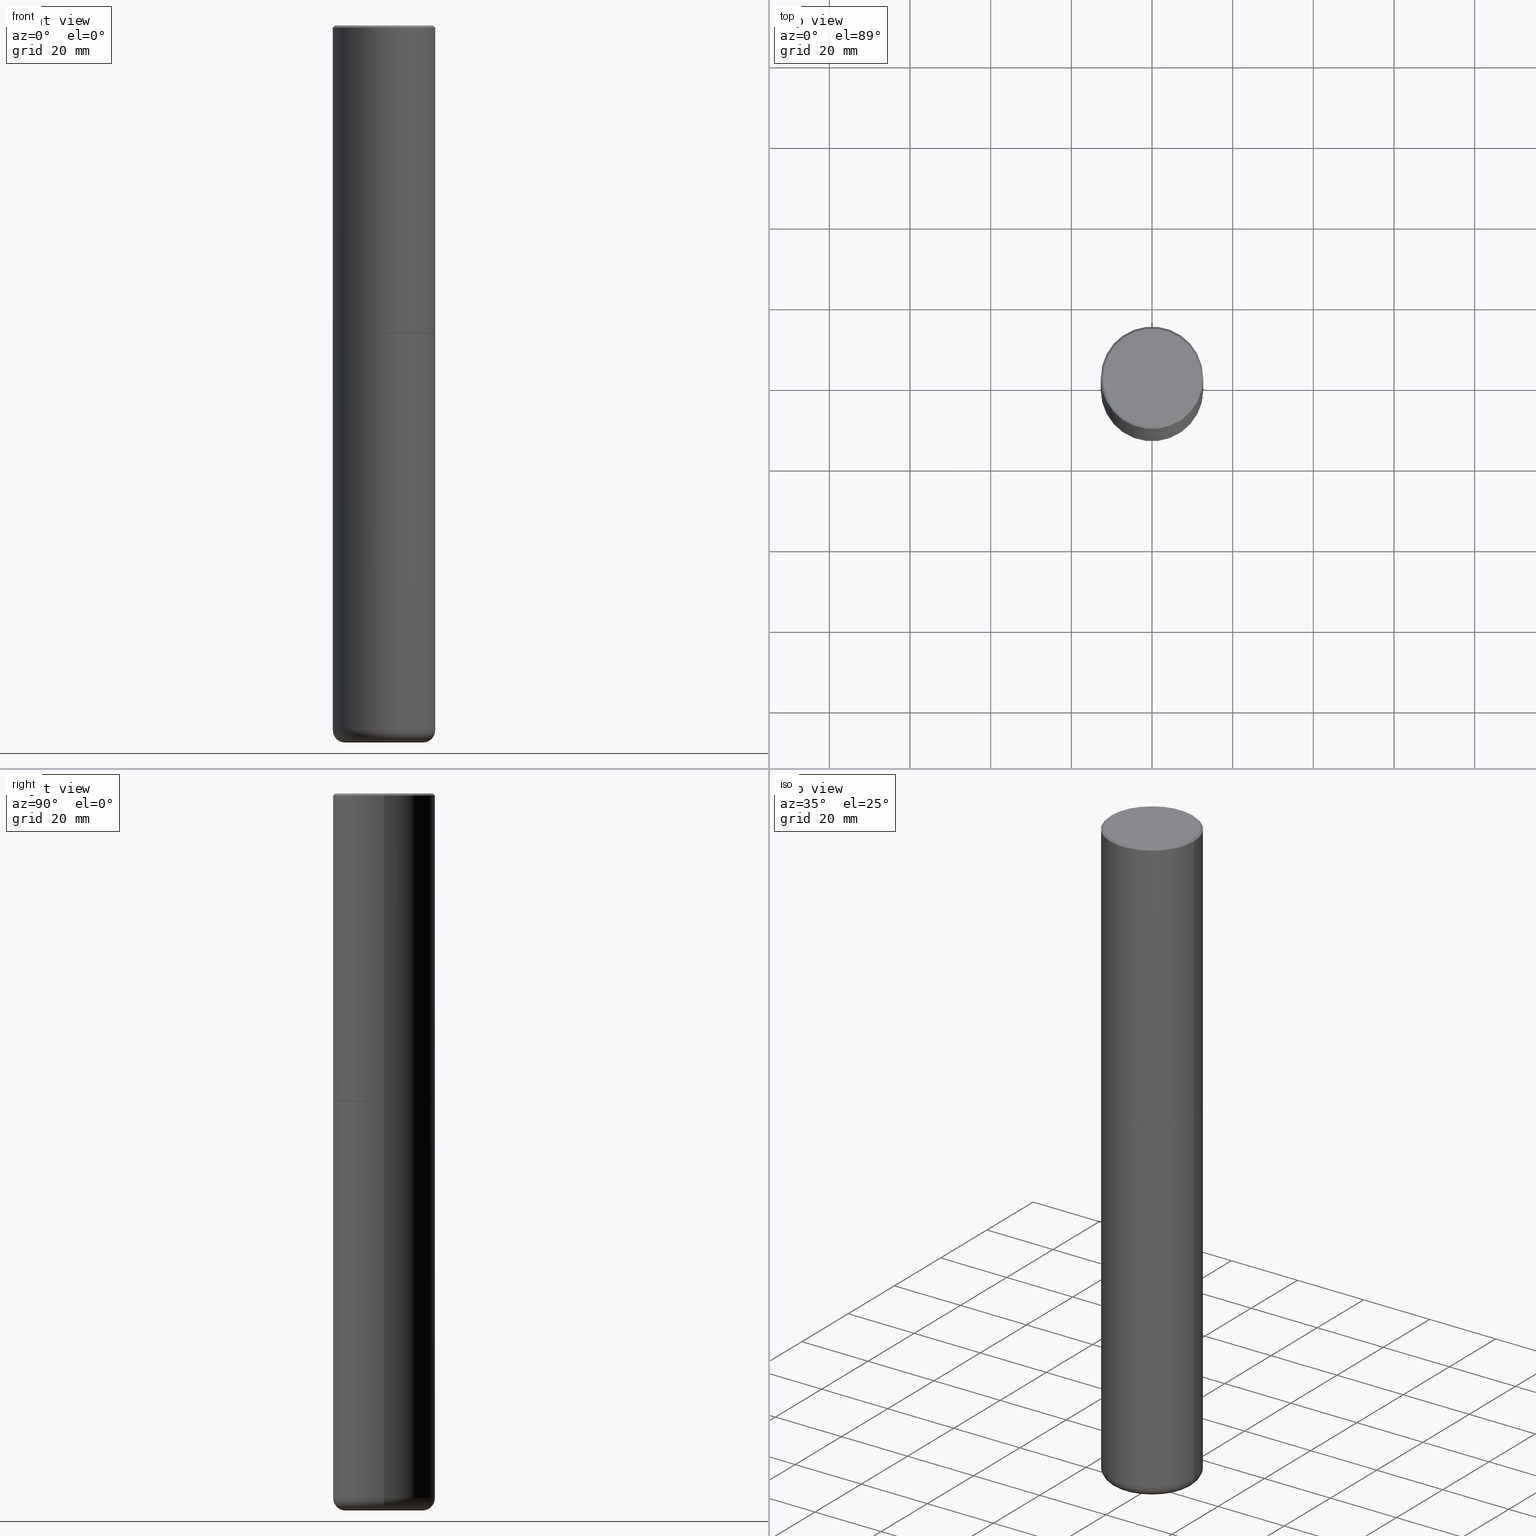
[diagram: canonical four-view strip — front | top / right | iso, engineering-drawing reading convention]
A machine part, canonical four-view strip (front | top / right | iso — engineering-drawing reading convention). The complete STEP part file that produces these views, byte-faithful:
ISO-10303-21;
HEADER;
FILE_DESCRIPTION (( 'STEP AP203' ),
    '1' );
FILE_NAME ('77504.STEP',
    '2024-05-02T19:51:52',
    ( '' ),
    ( '' ),
    'SwSTEP 2.0',
    'SolidWorks 2023',
    '' );
FILE_SCHEMA (( 'CONFIG_CONTROL_DESIGN' ));
ENDSEC;

DATA;
#1 = DIRECTION ( 'NONE',  ( 1.000000000000000000, -6.982962677686267499E-15, 4.876176775795935793E-29 ) ) ;
#2 = CARTESIAN_POINT ( 'NONE',  ( 0.000000000000000000, 0.000000000000000000, 0.000000000000000000 ) ) ;
#3 = FACE_OUTER_BOUND ( 'NONE', #13, .T. ) ;
#4 = COORDINATED_UNIVERSAL_TIME_OFFSET ( 5, 0, .BEHIND. ) ;
#5 = EDGE_CURVE ( 'NONE', #193, #268, #314, .T. ) ;
#6 = DIRECTION ( 'NONE',  ( -2.445468806185136877E-29, 3.491481338843145188E-15, 1.000000000000000000 ) ) ;
#7 = DIRECTION ( 'NONE',  ( 1.000000000000000000, -6.982962677686273021E-15, 0.000000000000000000 ) ) ;
#8 = CARTESIAN_POINT ( 'NONE',  ( 7.336406418555408669E-29, -1.047444401652943478E-14, -2.999999999999999556 ) ) ;
#9 = VERTEX_POINT ( 'NONE', #221 ) ;
#10 = ORIENTED_EDGE ( 'NONE', *, *, #49, .T. ) ;
#11 = CARTESIAN_POINT ( 'NONE',  ( 7.336406418555408669E-29, -1.047444401652943478E-14, -2.999999999999999556 ) ) ;
#12 = LINE ( 'NONE', #154, #198 ) ;
#13 = EDGE_LOOP ( 'NONE', ( #282, #311, #377, #196 ) ) ;
#14 = EDGE_CURVE ( 'NONE', #9, #278, #351, .T. ) ;
#15 = AXIS2_PLACEMENT_3D ( 'NONE', #241, #61, #219 ) ;
#16 = ORIENTED_EDGE ( 'NONE', *, *, #332, .T. ) ;
#17 = DIRECTION ( 'NONE',  ( -2.445468806185136597E-29, 3.491481338843145583E-15, 1.000000000000000000 ) ) ;
#18 = ADVANCED_FACE ( 'NONE', ( #251 ), #147, .F. ) ;
#19 = DIRECTION ( 'NONE',  ( -2.445468806185136597E-29, 3.491481338843145583E-15, 1.000000000000000000 ) ) ;
#20 = ORIENTED_EDGE ( 'NONE', *, *, #5, .T. ) ;
#21 = DIRECTION ( 'NONE',  ( 1.000000000000000000, -6.982962677686266711E-15, 4.874852205035275907E-29 ) ) ;
#22 = CIRCLE ( 'NONE', #284, 0.5000000000000001110 ) ;
#23 = CARTESIAN_POINT ( 'NONE',  ( -0.5000000000000001110, 3.552713678800501718E-15, -2.459467545127453732E-29 ) ) ;
#24 = DIRECTION ( 'NONE',  ( 1.000000000000000000, -6.982962677686269077E-15, 0.000000000000000000 ) ) ;
#25 = DIRECTION ( 'NONE',  ( 1.000000000000000000, -6.982962677686273021E-15, 0.000000000000000000 ) ) ;
#26 = MANIFOLD_SOLID_BREP ( 'Body-Move/Copy2[1]', #400 ) ;
#27 = PERSON_AND_ORGANIZATION ( #42, #172 ) ;
#28 = CIRCLE ( 'NONE', #391, 0.4989999999999999991 ) ;
#29 = CALENDAR_DATE ( 2024, 2, 5 ) ;
#30 = EDGE_CURVE ( 'NONE', #56, #268, #226, .T. ) ;
#31 = EDGE_CURVE ( 'NONE', #335, #269, #34, .T. ) ;
#32 = EDGE_CURVE ( 'NONE', #205, #356, #274, .T. ) ;
#33 = FACE_OUTER_BOUND ( 'NONE', #183, .T. ) ;
#34 = CIRCLE ( 'NONE', #149, 0.3799999999999999489 ) ;
#35 = ORIENTED_EDGE ( 'NONE', *, *, #273, .T. ) ;
#36 = CONICAL_SURFACE ( 'NONE', #15, 0.5000000000000000000, 0.7853981633974463916 ) ;
#37 = CARTESIAN_POINT ( 'NONE',  ( 0.5000000000000000000, -3.500078625662629079E-15, -0.02000000000000010797 ) ) ;
#38 = SHAPE_DEFINITION_REPRESENTATION ( #177, #135 ) ;
#39 =( CONVERSION_BASED_UNIT ( 'INCH', #288 ) LENGTH_UNIT ( ) NAMED_UNIT ( #216 ) );
#40 = DIRECTION ( 'NONE',  ( 1.000000000000000000, -6.982962677686265922E-15, 4.876176775795935793E-29 ) ) ;
#41 = UNCERTAINTY_MEASURE_WITH_UNIT (LENGTH_MEASURE( 1.000000000000000082E-05 ), #39, 'distance_accuracy_value', 'NONE');
#42 = PERSON ( 'UNSPECIFIED', 'UNSPECIFIED', 'UNSPECIFIED', ('UNSPECIFIED'), ('UNSPECIFIED'), ('UNSPECIFIED') ) ;
#43 = DIRECTION ( 'NONE',  ( -2.445468806185136597E-29, 3.491481338843145583E-15, 1.000000000000000000 ) ) ;
#44 = DIRECTION ( 'NONE',  ( -2.438088387897960049E-29, 3.491481338843145188E-15, 1.000000000000000000 ) ) ;
#45 = VECTOR ( 'NONE', #138, 39.37007874015748143 ) ;
#46 = ORIENTED_EDGE ( 'NONE', *, *, #80, .F. ) ;
#47 = DATE_TIME_ROLE ( 'classification_date' ) ;
#48 = ORIENTED_EDGE ( 'NONE', *, *, #31, .F. ) ;
#49 = EDGE_CURVE ( 'NONE', #218, #56, #326, .T. ) ;
#50 = CARTESIAN_POINT ( 'NONE',  ( 4.890937612370299433E-31, -6.982962677686328587E-17, -0.02000000000000010797 ) ) ;
#51 = EDGE_CURVE ( 'NONE', #269, #335, #289, .T. ) ;
#52 = ORIENTED_EDGE ( 'NONE', *, *, #180, .T. ) ;
#53 = ORIENTED_EDGE ( 'NONE', *, *, #32, .F. ) ;
#54 = CARTESIAN_POINT ( 'NONE',  ( 1.711828164329595394E-28, -2.444036937190201868E-14, -7.000000000000000000 ) ) ;
#55 = APPROVAL_PERSON_ORGANIZATION ( #167, #207, #258 ) ;
#56 = VERTEX_POINT ( 'NONE', #354 ) ;
#57 = LOCAL_TIME ( 15, 51, 52.00000000000000000, #134 ) ;
#58 = CARTESIAN_POINT ( 'NONE',  ( -0.5000000000000000000, 3.421651712066270057E-15, -0.02000000000000010797 ) ) ;
#59 = ORIENTED_EDGE ( 'NONE', *, *, #14, .F. ) ;
#60 = CC_DESIGN_PERSON_AND_ORGANIZATION_ASSIGNMENT ( #256, #353, ( #102 ) ) ;
#61 = DIRECTION ( 'NONE',  ( 2.445468806185136597E-29, -3.491481338843145583E-15, -1.000000000000000000 ) ) ;
#62 = DIRECTION ( 'NONE',  ( -0.7071067811865461294, 2.468850131082242072E-15, -0.7071067811865489050 ) ) ;
#63 = DIRECTION ( 'NONE',  ( -2.445468806185136597E-29, 3.491481338843145583E-15, 1.000000000000000000 ) ) ;
#64 = DIRECTION ( 'NONE',  ( 1.000000000000000000, -6.982962677686266711E-15, 4.876176775795935793E-29 ) ) ;
#65 = CONICAL_SURFACE ( 'NONE', #159, 0.4989999999999999991, 0.7853981633977213939 ) ;
#66 = LOCAL_TIME ( 15, 51, 52.00000000000000000, #4 ) ;
#67 =( LENGTH_UNIT ( ) NAMED_UNIT ( * ) SI_UNIT ( $, .METRE. ) );
#68 = PERSON_AND_ORGANIZATION ( #42, #172 ) ;
#69 = PERSON_AND_ORGANIZATION_ROLE ( 'design_supplier' ) ;
#70 = CC_DESIGN_PERSON_AND_ORGANIZATION_ASSIGNMENT ( #233, #355, ( #133 ) ) ;
#71 = EDGE_LOOP ( 'NONE', ( #299, #341, #59, #334 ) ) ;
#72 = CARTESIAN_POINT ( 'NONE',  ( 4.890937612370299433E-31, -6.982962677686328587E-17, -0.02000000000000010797 ) ) ;
#73 = DATE_TIME_ROLE ( 'creation_date' ) ;
#74 = AXIS2_PLACEMENT_3D ( 'NONE', #81, #337, #371 ) ;
#75 = FACE_OUTER_BOUND ( 'NONE', #118, .T. ) ;
#76 = ORIENTED_EDGE ( 'NONE', *, *, #5, .F. ) ;
#77 = LOCAL_TIME ( 15, 51, 52.00000000000000000, #99 ) ;
#78 = VERTEX_POINT ( 'NONE', #336 ) ;
#79 = ORIENTED_EDGE ( 'NONE', *, *, #107, .T. ) ;
#80 = EDGE_CURVE ( 'NONE', #86, #193, #405, .T. ) ;
#81 = CARTESIAN_POINT ( 'NONE',  ( 7.336406418555408669E-29, -1.047444401652943478E-14, -2.999999999999999556 ) ) ;
#82 = DIRECTION ( 'NONE',  ( -2.445468806185136597E-29, 3.491481338843145583E-15, 1.000000000000000000 ) ) ;
#83 = PERSON_AND_ORGANIZATION ( #42, #172 ) ;
#84 = CARTESIAN_POINT ( 'NONE',  ( -0.3799999999999999489, -2.132132921535246210E-14, -6.879999999999999893 ) ) ;
#85 = DIRECTION ( 'NONE',  ( 1.000000000000000000, -6.982962677686269077E-15, 0.000000000000000000 ) ) ;
#86 = VERTEX_POINT ( 'NONE', #146 ) ;
#87 = ORIENTED_EDGE ( 'NONE', *, *, #14, .T. ) ;
#88 = TOROIDAL_SURFACE ( 'NONE', #321, 0.3799999999999999489, 0.1199999999999999539 ) ;
#89 = ORIENTED_EDGE ( 'NONE', *, *, #272, .F. ) ;
#90 = ADVANCED_FACE ( 'NONE', ( #33 ), #301, .T. ) ;
#91 = CARTESIAN_POINT ( 'NONE',  ( 0.000000000000000000, 0.000000000000000000, 0.000000000000000000 ) ) ;
#92 = APPLICATION_PROTOCOL_DEFINITION ( 'international standard', 'config_control_design', 1994, #189 ) ;
#93 = AXIS2_PLACEMENT_3D ( 'NONE', #178, #266, #208 ) ;
#94 = APPLICATION_PROTOCOL_DEFINITION ( 'international standard', 'config_control_design', 1994, #383 ) ;
#95 = APPROVAL_DATE_TIME ( #329, #207 ) ;
#96 = APPROVAL ( #364, 'UNSPECIFIED' ) ;
#97 = VECTOR ( 'NONE', #307, 39.37007874015748143 ) ;
#98 = ORIENTED_EDGE ( 'NONE', *, *, #206, .F. ) ;
#99 = COORDINATED_UNIVERSAL_TIME_OFFSET ( 5, 0, .BEHIND. ) ;
#100 = DIRECTION ( 'NONE',  ( -2.445468806185136597E-29, 3.491481338843145583E-15, 1.000000000000000000 ) ) ;
#101 = AXIS2_PLACEMENT_3D ( 'NONE', #308, #155, #280 ) ;
#102 = PRODUCT_DEFINITION_FORMATION_WITH_SPECIFIED_SOURCE ( 'ANY', '', #133, .NOT_KNOWN. ) ;
#103 = ADVANCED_FACE ( 'NONE', ( #378 ), #286, .T. ) ;
#104 = PLANE ( 'NONE',  #290 ) ;
#105 = ORIENTED_EDGE ( 'NONE', *, *, #51, .T. ) ;
#106 = ORIENTED_EDGE ( 'NONE', *, *, #163, .T. ) ;
#107 = EDGE_CURVE ( 'NONE', #78, #144, #28, .T. ) ;
#108 = ORIENTED_EDGE ( 'NONE', *, *, #32, .T. ) ;
#109 = EDGE_CURVE ( 'NONE', #245, #268, #370, .T. ) ;
#110 = AXIS2_PLACEMENT_3D ( 'NONE', #271, #338, #401 ) ;
#111 = AXIS2_PLACEMENT_3D ( 'NONE', #152, #17, #157 ) ;
#112 = CARTESIAN_POINT ( 'NONE',  ( 1.682482538655373988E-28, -2.402139161124084205E-14, -6.879999999999999893 ) ) ;
#113 = CONICAL_SURFACE ( 'NONE', #315, 0.4989999999999999991, 0.7853981633977213939 ) ;
#114 = EDGE_LOOP ( 'NONE', ( #248, #145 ) ) ;
#115 = DIRECTION ( 'NONE',  ( -2.445468806185136877E-29, 3.491481338843145188E-15, 1.000000000000000000 ) ) ;
#116 = PLANE ( 'NONE',  #74 ) ;
#117 = ORIENTED_EDGE ( 'NONE', *, *, #31, .T. ) ;
#118 = EDGE_LOOP ( 'NONE', ( #35, #153, #365, #148 ) ) ;
#119 = DIRECTION ( 'NONE',  ( 1.000000000000000000, -6.982962677686264344E-15, 4.883557194083112340E-29 ) ) ;
#120 = ORIENTED_EDGE ( 'NONE', *, *, #295, .T. ) ;
#121 = EDGE_LOOP ( 'NONE', ( #87, #298 ) ) ;
#122 = VECTOR ( 'NONE', #287, 39.37007874015748143 ) ;
#123 = DIRECTION ( 'NONE',  ( -2.445468806185136597E-29, 3.491481338843145583E-15, 1.000000000000000000 ) ) ;
#124 = CARTESIAN_POINT ( 'NONE',  ( 0.000000000000000000, 0.000000000000000000, 0.000000000000000000 ) ) ;
#125 = CARTESIAN_POINT ( 'NONE',  ( -0.4989999999999999991, -6.928835765086534855E-15, -2.999999999999999556 ) ) ;
#126 = EDGE_CURVE ( 'NONE', #78, #245, #317, .T. ) ;
#127 = CIRCLE ( 'NONE', #376, 0.1199999999999999539 ) ;
#128 = DESIGN_CONTEXT ( 'detailed design', #383, 'design' ) ;
#129 = CALENDAR_DATE ( 2024, 2, 5 ) ;
#130 = CC_DESIGN_PERSON_AND_ORGANIZATION_ASSIGNMENT ( #358, #261, ( #227 ) ) ;
#131 = ORIENTED_EDGE ( 'NONE', *, *, #239, .F. ) ;
#132 = APPROVAL_STATUS ( 'not_yet_approved' ) ;
#133 = PRODUCT ( '77504', '77504', '', ( #176 ) ) ;
#134 = COORDINATED_UNIVERSAL_TIME_OFFSET ( 5, 0, .BEHIND. ) ;
#135 = ADVANCED_BREP_SHAPE_REPRESENTATION ( '77504', ( #26, #302, #191 ), #296 ) ;
#136 = CIRCLE ( 'NONE', #93, 0.5000000000000003331 ) ;
#137 = CYLINDRICAL_SURFACE ( 'NONE', #366, 0.5000000000000001110 ) ;
#138 = DIRECTION ( 'NONE',  ( 0.7071067811865461294, -7.319954787623251312E-15, -0.7071067811865489050 ) ) ;
#139 = DIRECTION ( 'NONE',  ( 0.000000000000000000, 0.000000000000000000, 1.000000000000000000 ) ) ;
#140 = TOROIDAL_SURFACE ( 'NONE', #240, 0.3799999999999999489, 0.1199999999999999539 ) ;
#141 = CYLINDRICAL_SURFACE ( 'NONE', #328, 0.5000000000000001110 ) ;
#142 = DATE_AND_TIME ( #238, #66 ) ;
#143 = ADVANCED_FACE ( 'NONE', ( #3 ), #141, .T. ) ;
#144 = VERTEX_POINT ( 'NONE', #327 ) ;
#145 = ORIENTED_EDGE ( 'NONE', *, *, #107, .F. ) ;
#146 = CARTESIAN_POINT ( 'NONE',  ( 0.5000000000000003331, -1.396243387403372828E-14, -2.999000000000000110 ) ) ;
#147 = PLANE ( 'NONE',  #110 ) ;
#148 = ORIENTED_EDGE ( 'NONE', *, *, #332, .F. ) ;
#149 = AXIS2_PLACEMENT_3D ( 'NONE', #54, #277, #7 ) ;
#150 = AXIS2_PLACEMENT_3D ( 'NONE', #390, #100, #211 ) ;
#151 = FACE_OUTER_BOUND ( 'NONE', #410, .T. ) ;
#152 = CARTESIAN_POINT ( 'NONE',  ( 7.336406418555408669E-29, -1.047444401652943478E-14, -2.999999999999999556 ) ) ;
#153 = ORIENTED_EDGE ( 'NONE', *, *, #126, .T. ) ;
#154 = CARTESIAN_POINT ( 'NONE',  ( -0.5000000000000000000, 3.552713678800500929E-15, -2.459467545127452891E-29 ) ) ;
#155 = DIRECTION ( 'NONE',  ( -2.445468806185136597E-29, 3.491481338843145583E-15, 1.000000000000000000 ) ) ;
#156 = ADVANCED_FACE ( 'NONE', ( #75 ), #113, .T. ) ;
#157 = DIRECTION ( 'NONE',  ( 1.000000000000000000, -6.982962677686266711E-15, 0.000000000000000000 ) ) ;
#158 = CARTESIAN_POINT ( 'NONE',  ( 7.336406418555408669E-29, -1.047444401652943478E-14, -2.999999999999999556 ) ) ;
#159 = AXIS2_PLACEMENT_3D ( 'NONE', #330, #237, #24 ) ;
#160 = CC_DESIGN_APPROVAL ( #96, ( #166 ) ) ;
#161 = DIRECTION ( 'NONE',  ( 1.000000000000000000, -6.982962677686269077E-15, 0.000000000000000000 ) ) ;
#162 = ADVANCED_FACE ( 'NONE', ( #362 ), #104, .F. ) ;
#163 = EDGE_CURVE ( 'NONE', #268, #193, #352, .T. ) ;
#164 = DIRECTION ( 'NONE',  ( -2.445468806185136877E-29, 3.491481338843145188E-15, 1.000000000000000000 ) ) ;
#165 = EDGE_LOOP ( 'NONE', ( #186, #117, #309, #53 ) ) ;
#166 = SECURITY_CLASSIFICATION ( '', '', #202 ) ;
#167 = PERSON_AND_ORGANIZATION ( #42, #172 ) ;
#168 = EDGE_CURVE ( 'NONE', #86, #245, #136, .T. ) ;
#169 = DATE_AND_TIME ( #29, #57 ) ;
#170 = APPROVAL_DATE_TIME ( #203, #300 ) ;
#171 = CARTESIAN_POINT ( 'NONE',  ( 0.3799999999999999489, -2.667491742876162529E-14, -6.879999999999999893 ) ) ;
#172 = ORGANIZATION ( 'UNSPECIFIED', 'UNSPECIFIED', '' ) ;
#173 = ORIENTED_EDGE ( 'NONE', *, *, #259, .T. ) ;
#174 = CARTESIAN_POINT ( 'NONE',  ( -0.5000000000000000000, -2.046867793244033797E-14, -6.879999999999999893 ) ) ;
#175 = CC_DESIGN_PERSON_AND_ORGANIZATION_ASSIGNMENT ( #27, #324, ( #166 ) ) ;
#176 = MECHANICAL_CONTEXT ( 'NONE', #189, 'mechanical' ) ;
#177 = PRODUCT_DEFINITION_SHAPE ( 'NONE', 'NONE',  #227 ) ;
#178 = CARTESIAN_POINT ( 'NONE',  ( 7.333960949749225308E-29, -1.047095253519059177E-14, -2.999000000000000110 ) ) ;
#179 = DIRECTION ( 'NONE',  ( -1.000000000000000000, 6.982962677686265922E-15, -4.876176775795935793E-29 ) ) ;
#180 = EDGE_CURVE ( 'NONE', #356, #9, #234, .T. ) ;
#181 = CONICAL_SURFACE ( 'NONE', #403, 0.5000000000000000000, 0.7853981633974463916 ) ;
#182 = DIRECTION ( 'NONE',  ( 1.000000000000000000, -6.982962677686266711E-15, 0.000000000000000000 ) ) ;
#183 = EDGE_LOOP ( 'NONE', ( #387, #48 ) ) ;
#184 = DIRECTION ( 'NONE',  ( 1.000000000000000000, -6.982962677686269077E-15, 0.000000000000000000 ) ) ;
#185 = ORIENTED_EDGE ( 'NONE', *, *, #30, .F. ) ;
#186 = ORIENTED_EDGE ( 'NONE', *, *, #259, .F. ) ;
#187 = CARTESIAN_POINT ( 'NONE',  ( 0.5000000000000001110, -3.491481338843134539E-15, 2.438088387897968457E-29 ) ) ;
#188 = DIRECTION ( 'NONE',  ( 1.000000000000000000, -6.982962677686264344E-15, 4.883557194083112340E-29 ) ) ;
#189 = APPLICATION_CONTEXT ( 'configuration controlled 3d designs of mechanical parts and assemblies' ) ;
#190 = EDGE_LOOP ( 'NONE', ( #257, #293, #20, #185 ) ) ;
#191 = AXIS2_PLACEMENT_3D ( 'NONE', #2, #139, #394 ) ;
#192 = LINE ( 'NONE', #246, #97 ) ;
#193 = VERTEX_POINT ( 'NONE', #37 ) ;
#194 = ORIENTED_EDGE ( 'NONE', *, *, #126, .F. ) ;
#195 = CARTESIAN_POINT ( 'NONE',  ( 1.682482538655373988E-28, -2.402139161124084205E-14, -6.879999999999999893 ) ) ;
#196 = ORIENTED_EDGE ( 'NONE', *, *, #163, .F. ) ;
#197 = DIRECTION ( 'NONE',  ( 1.000000000000000000, -6.982962677686266711E-15, 4.876176775795935793E-29 ) ) ;
#198 = VECTOR ( 'NONE', #409, 39.37007874015748143 ) ;
#199 = AXIS2_PLACEMENT_3D ( 'NONE', #124, #228, #64 ) ;
#200 = AXIS2_PLACEMENT_3D ( 'NONE', #279, #399, #346 ) ;
#201 = CC_DESIGN_SECURITY_CLASSIFICATION ( #166, ( #102 ) ) ;
#202 = SECURITY_CLASSIFICATION_LEVEL ( 'unclassified' ) ;
#203 = DATE_AND_TIME ( #230, #412 ) ;
#204 = FACE_OUTER_BOUND ( 'NONE', #339, .T. ) ;
#205 = VERTEX_POINT ( 'NONE', #174 ) ;
#206 = EDGE_CURVE ( 'NONE', #218, #193, #395, .T. ) ;
#207 = APPROVAL ( #132, 'UNSPECIFIED' ) ;
#208 = DIRECTION ( 'NONE',  ( 1.000000000000000000, -6.982962677686265922E-15, 0.000000000000000000 ) ) ;
#209 = AXIS2_PLACEMENT_3D ( 'NONE', #72, #43, #182 ) ;
#210 = APPROVAL_PERSON_ORGANIZATION ( #83, #96, #213 ) ;
#211 = DIRECTION ( 'NONE',  ( 1.000000000000000000, -6.982962677686265922E-15, 0.000000000000000000 ) ) ;
#212 = DIRECTION ( 'NONE',  ( -2.445468806185136597E-29, 3.491481338843145583E-15, 1.000000000000000000 ) ) ;
#213 = APPROVAL_ROLE ( '' ) ;
#214 = APPROVAL_PERSON_ORGANIZATION ( #291, #300, #414 ) ;
#215 = CARTESIAN_POINT ( 'NONE',  ( 0.000000000000000000, 0.000000000000000000, 0.000000000000000000 ) ) ;
#216 = DIMENSIONAL_EXPONENTS ( 1.000000000000000000, 0.000000000000000000, 0.000000000000000000, 0.000000000000000000, 0.000000000000000000, 0.000000000000000000, 0.000000000000000000 ) ;
#217 = ORIENTED_EDGE ( 'NONE', *, *, #322, .F. ) ;
#218 = VERTEX_POINT ( 'NONE', #263 ) ;
#219 = DIRECTION ( 'NONE',  ( -1.000000000000000000, 6.982962677686266711E-15, 0.000000000000000000 ) ) ;
#220 = APPROVAL_DATE_TIME ( #142, #96 ) ;
#221 = CARTESIAN_POINT ( 'NONE',  ( 0.5000000000000000000, -1.396592535537256813E-14, -2.999999999999999556 ) ) ;
#222 = CIRCLE ( 'NONE', #150, 0.5000000000000003331 ) ;
#223 = FACE_OUTER_BOUND ( 'NONE', #71, .T. ) ;
#224 = DIRECTION ( 'NONE',  ( -2.445468806185136597E-29, 3.491481338843145583E-15, 1.000000000000000000 ) ) ;
#225 = CARTESIAN_POINT ( 'NONE',  ( 0.3799999999999999489, -2.709389518942280193E-14, -7.000000000000000000 ) ) ;
#226 = LINE ( 'NONE', #347, #349 ) ;
#227 = PRODUCT_DEFINITION ( 'UNKNOWN', '', #102, #128 ) ;
#228 = DIRECTION ( 'NONE',  ( -2.445468806185136597E-29, 3.491481338843145583E-15, 1.000000000000000000 ) ) ;
#229 = ADVANCED_FACE ( 'NONE', ( #294 ), #137, .T. ) ;
#230 = CALENDAR_DATE ( 2024, 2, 5 ) ;
#231 = APPROVAL_STATUS ( 'not_yet_approved' ) ;
#232 = AXIS2_PLACEMENT_3D ( 'NONE', #303, #285, #21 ) ;
#233 = PERSON_AND_ORGANIZATION ( #42, #172 ) ;
#234 = LINE ( 'NONE', #297, #386 ) ;
#235 = AXIS2_PLACEMENT_3D ( 'NONE', #368, #82, #85 ) ;
#236 = CC_DESIGN_APPROVAL ( #300, ( #227 ) ) ;
#237 = DIRECTION ( 'NONE',  ( -2.445468806185136597E-29, 3.491481338843145583E-15, 1.000000000000000000 ) ) ;
#238 = CALENDAR_DATE ( 2024, 2, 5 ) ;
#239 = EDGE_CURVE ( 'NONE', #245, #86, #222, .T. ) ;
#240 = AXIS2_PLACEMENT_3D ( 'NONE', #195, #63, #119 ) ;
#241 = CARTESIAN_POINT ( 'NONE',  ( 4.890937612370299433E-31, -6.982962677686328587E-17, -0.02000000000000010797 ) ) ;
#242 = DIRECTION ( 'NONE',  ( 1.000000000000000000, -6.982962677686269077E-15, 0.000000000000000000 ) ) ;
#243 = FACE_OUTER_BOUND ( 'NONE', #165, .T. ) ;
#244 = ORIENTED_EDGE ( 'NONE', *, *, #109, .T. ) ;
#245 = VERTEX_POINT ( 'NONE', #331 ) ;
#246 = CARTESIAN_POINT ( 'NONE',  ( 0.4989999999999999991, -1.395894239269488369E-14, -2.999999999999999556 ) ) ;
#247 = CARTESIAN_POINT ( 'NONE',  ( 1.711828164329595394E-28, -2.444036937190201868E-14, -7.000000000000000000 ) ) ;
#248 = ORIENTED_EDGE ( 'NONE', *, *, #273, .F. ) ;
#249 = CIRCLE ( 'NONE', #402, 0.4989999999999999991 ) ;
#250 = CARTESIAN_POINT ( 'NONE',  ( -0.5000000000000000000, -1.369520413508463748E-14, -2.999999999999999556 ) ) ;
#251 = FACE_OUTER_BOUND ( 'NONE', #369, .T. ) ;
#252 = CC_DESIGN_DATE_AND_TIME_ASSIGNMENT ( #169, #47, ( #166 ) ) ;
#253 = CYLINDRICAL_SURFACE ( 'NONE', #275, 0.5000000000000000000 ) ;
#254 = ADVANCED_FACE ( 'NONE', ( #392 ), #181, .T. ) ;
#255 = AXIS2_PLACEMENT_3D ( 'NONE', #397, #224, #345 ) ;
#256 = PERSON_AND_ORGANIZATION ( #42, #172 ) ;
#257 = ORIENTED_EDGE ( 'NONE', *, *, #49, .F. ) ;
#258 = APPROVAL_ROLE ( '' ) ;
#259 = EDGE_CURVE ( 'NONE', #335, #205, #265, .T. ) ;
#260 = LOCAL_TIME ( 15, 51, 52.00000000000000000, #388 ) ;
#261 = PERSON_AND_ORGANIZATION_ROLE ( 'creator' ) ;
#262 = DIRECTION ( 'NONE',  ( -2.445468806185136597E-29, 3.491481338843145583E-15, 1.000000000000000000 ) ) ;
#263 = CARTESIAN_POINT ( 'NONE',  ( 0.4800000000000000933, -3.396558832296482493E-15, -1.067128122524866809E-16 ) ) ;
#264 = VECTOR ( 'NONE', #164, 39.37007874015748143 ) ;
#265 = CIRCLE ( 'NONE', #411, 0.1199999999999999539 ) ;
#266 = DIRECTION ( 'NONE',  ( -2.445468806185136597E-29, 3.491481338843145583E-15, 1.000000000000000000 ) ) ;
#267 = DIRECTION ( 'NONE',  ( -2.445468806185136597E-29, 3.491481338843145583E-15, 1.000000000000000000 ) ) ;
#268 = VERTEX_POINT ( 'NONE', #58 ) ;
#269 = VERTEX_POINT ( 'NONE', #225 ) ;
#270 = CARTESIAN_POINT ( 'NONE',  ( 7.336406418555408669E-29, -1.047444401652943478E-14, -2.999999999999999556 ) ) ;
#271 = CARTESIAN_POINT ( 'NONE',  ( 3.351822085289408337E-15, 0.4800000000000000933, -1.729267448770965221E-15 ) ) ;
#272 = EDGE_CURVE ( 'NONE', #205, #278, #12, .T. ) ;
#273 = EDGE_CURVE ( 'NONE', #144, #78, #249, .T. ) ;
#274 = CIRCLE ( 'NONE', #235, 0.5000000000000001110 ) ;
#275 = AXIS2_PLACEMENT_3D ( 'NONE', #91, #348, #197 ) ;
#276 = FACE_OUTER_BOUND ( 'NONE', #121, .T. ) ;
#277 = DIRECTION ( 'NONE',  ( -2.445468806185136597E-29, 3.491481338843145583E-15, 1.000000000000000000 ) ) ;
#278 = VERTEX_POINT ( 'NONE', #250 ) ;
#279 = CARTESIAN_POINT ( 'NONE',  ( 7.336406418555408669E-29, -1.047444401652943478E-14, -2.999999999999999556 ) ) ;
#280 = DIRECTION ( 'NONE',  ( 1.000000000000000000, -6.982962677686266711E-15, 4.874852205035275907E-29 ) ) ;
#281 = DIRECTION ( 'NONE',  ( 2.445468806185136597E-29, -3.491481338843145583E-15, -1.000000000000000000 ) ) ;
#282 = ORIENTED_EDGE ( 'NONE', *, *, #109, .F. ) ;
#283 = CLOSED_SHELL ( 'NONE', ( #156, #229, #254, #319, #143, #389, #162, #18 ) ) ;
#284 = AXIS2_PLACEMENT_3D ( 'NONE', #112, #19, #344 ) ;
#285 = DIRECTION ( 'NONE',  ( -2.445468806185136597E-29, 3.491481338843145583E-15, 1.000000000000000000 ) ) ;
#286 = CYLINDRICAL_SURFACE ( 'NONE', #199, 0.5000000000000000000 ) ;
#287 = DIRECTION ( 'NONE',  ( -0.7071067811867406405, 7.493145998871051513E-15, 0.7071067811863543939 ) ) ;
#288 = LENGTH_MEASURE_WITH_UNIT ( LENGTH_MEASURE( 0.02539999999999999897 ), #67 );
#289 = CIRCLE ( 'NONE', #306, 0.3799999999999999489 ) ;
#290 = AXIS2_PLACEMENT_3D ( 'NONE', #270, #44, #40 ) ;
#291 = PERSON_AND_ORGANIZATION ( #42, #172 ) ;
#292 = COORDINATED_UNIVERSAL_TIME_OFFSET ( 5, 0, .BEHIND. ) ;
#293 = ORIENTED_EDGE ( 'NONE', *, *, #206, .T. ) ;
#294 = FACE_OUTER_BOUND ( 'NONE', #325, .T. ) ;
#295 = EDGE_CURVE ( 'NONE', #56, #218, #416, .T. ) ;
#296 =( GEOMETRIC_REPRESENTATION_CONTEXT ( 3 ) GLOBAL_UNCERTAINTY_ASSIGNED_CONTEXT ( ( #41 ) ) GLOBAL_UNIT_ASSIGNED_CONTEXT ( ( #39, #384, #382 ) ) REPRESENTATION_CONTEXT ( 'NONE', 'WORKASPACE' ) );
#297 = CARTESIAN_POINT ( 'NONE',  ( 0.5000000000000000000, -3.491481338843133355E-15, 2.438088387897967896E-29 ) ) ;
#298 = ORIENTED_EDGE ( 'NONE', *, *, #312, .T. ) ;
#299 = ORIENTED_EDGE ( 'NONE', *, *, #322, .T. ) ;
#300 = APPROVAL ( #231, 'UNSPECIFIED' ) ;
#301 = PLANE ( 'NONE',  #342 ) ;
#302 = MANIFOLD_SOLID_BREP ( 'Body-Move/Copy2[2]', #283 ) ;
#303 = CARTESIAN_POINT ( 'NONE',  ( 2.609628535838049452E-45, -3.725857925951117973E-31, -1.067128122525102851E-16 ) ) ;
#304 = ORIENTED_EDGE ( 'NONE', *, *, #168, .T. ) ;
#305 = EDGE_LOOP ( 'NONE', ( #89, #108, #52, #340 ) ) ;
#306 = AXIS2_PLACEMENT_3D ( 'NONE', #247, #375, #25 ) ;
#307 = DIRECTION ( 'NONE',  ( 0.7071067811867406405, -2.468850131084279700E-15, 0.7071067811863543939 ) ) ;
#308 = CARTESIAN_POINT ( 'NONE',  ( 2.609628535838049452E-45, -3.725857925951117973E-31, -1.067128122525102851E-16 ) ) ;
#309 = ORIENTED_EDGE ( 'NONE', *, *, #413, .T. ) ;
#310 = DIRECTION ( 'NONE',  ( -2.445468806185136597E-29, 3.491481338843145583E-15, 1.000000000000000000 ) ) ;
#311 = ORIENTED_EDGE ( 'NONE', *, *, #239, .T. ) ;
#312 = EDGE_CURVE ( 'NONE', #278, #9, #393, .T. ) ;
#313 = DIRECTION ( 'NONE',  ( 7.105427357601001859E-15, 1.000000000000000000, -3.491481338843145583E-15 ) ) ;
#314 = CIRCLE ( 'NONE', #255, 0.5000000000000000000 ) ;
#315 = AXIS2_PLACEMENT_3D ( 'NONE', #8, #267, #184 ) ;
#316 = DIRECTION ( 'NONE',  ( -1.000000000000000000, 7.105427357600993970E-15, 0.000000000000000000 ) ) ;
#317 = LINE ( 'NONE', #125, #122 ) ;
#318 = DIRECTION ( 'NONE',  ( -6.982962677686266711E-15, -1.000000000000000000, 3.491481338843145583E-15 ) ) ;
#319 = ADVANCED_FACE ( 'NONE', ( #151 ), #36, .T. ) ;
#320 = PRODUCT_RELATED_PRODUCT_CATEGORY ( 'detail', '', ( #133 ) ) ;
#321 = AXIS2_PLACEMENT_3D ( 'NONE', #367, #123, #188 ) ;
#322 = EDGE_CURVE ( 'NONE', #356, #205, #22, .T. ) ;
#323 = DIRECTION ( 'NONE',  ( 2.438088387897960049E-29, -3.491481338843145188E-15, -1.000000000000000000 ) ) ;
#324 = PERSON_AND_ORGANIZATION_ROLE ( 'classification_officer' ) ;
#325 = EDGE_LOOP ( 'NONE', ( #304, #244, #76, #46 ) ) ;
#326 = CIRCLE ( 'NONE', #101, 0.4800000000000000933 ) ;
#327 = CARTESIAN_POINT ( 'NONE',  ( 0.4989999999999999991, -1.395894239269488369E-14, -2.999999999999999556 ) ) ;
#328 = AXIS2_PLACEMENT_3D ( 'NONE', #215, #212, #357 ) ;
#329 = DATE_AND_TIME ( #385, #77 ) ;
#330 = CARTESIAN_POINT ( 'NONE',  ( 7.336406418555408669E-29, -1.047444401652943478E-14, -2.999999999999999556 ) ) ;
#331 = CARTESIAN_POINT ( 'NONE',  ( -0.5000000000000003331, -1.717677402183223054E-15, -2.999000000000000110 ) ) ;
#332 = EDGE_CURVE ( 'NONE', #144, #86, #192, .T. ) ;
#333 = CARTESIAN_POINT ( 'NONE',  ( 1.711828164329595394E-28, -2.444036937190201868E-14, -7.000000000000000000 ) ) ;
#334 = ORIENTED_EDGE ( 'NONE', *, *, #180, .F. ) ;
#335 = VERTEX_POINT ( 'NONE', #406 ) ;
#336 = CARTESIAN_POINT ( 'NONE',  ( -0.4989999999999999991, -6.923537310738311664E-15, -2.999999999999999556 ) ) ;
#337 = DIRECTION ( 'NONE',  ( 2.438088387897960049E-29, -3.491481338843145188E-15, -1.000000000000000000 ) ) ;
#338 = DIRECTION ( 'NONE',  ( 2.438088387897960049E-29, -3.491481338843145188E-15, -1.000000000000000000 ) ) ;
#339 = EDGE_LOOP ( 'NONE', ( #194, #79, #16, #131 ) ) ;
#340 = ORIENTED_EDGE ( 'NONE', *, *, #312, .F. ) ;
#341 = ORIENTED_EDGE ( 'NONE', *, *, #272, .T. ) ;
#342 = AXIS2_PLACEMENT_3D ( 'NONE', #333, #323, #179 ) ;
#343 = CC_DESIGN_APPROVAL ( #207, ( #102 ) ) ;
#344 = DIRECTION ( 'NONE',  ( 1.000000000000000000, -6.982962677686269077E-15, 0.000000000000000000 ) ) ;
#345 = DIRECTION ( 'NONE',  ( 1.000000000000000000, -6.982962677686266711E-15, 0.000000000000000000 ) ) ;
#346 = DIRECTION ( 'NONE',  ( 1.000000000000000000, -6.982962677686266711E-15, 0.000000000000000000 ) ) ;
#347 = CARTESIAN_POINT ( 'NONE',  ( -0.5000000000000000000, 3.421651712066270057E-15, -0.02000000000000010797 ) ) ;
#348 = DIRECTION ( 'NONE',  ( -2.445468806185136597E-29, 3.491481338843145583E-15, 1.000000000000000000 ) ) ;
#349 = VECTOR ( 'NONE', #62, 39.37007874015748143 ) ;
#350 = ADVANCED_FACE ( 'NONE', ( #243 ), #88, .T. ) ;
#351 = CIRCLE ( 'NONE', #111, 0.5000000000000000000 ) ;
#352 = CIRCLE ( 'NONE', #209, 0.5000000000000000000 ) ;
#353 = PERSON_AND_ORGANIZATION_ROLE ( 'creator' ) ;
#354 = CARTESIAN_POINT ( 'NONE',  ( -0.4800000000000000933, 3.386736898677839197E-15, -1.067128122525338523E-16 ) ) ;
#355 = PERSON_AND_ORGANIZATION_ROLE ( 'design_owner' ) ;
#356 = VERTEX_POINT ( 'NONE', #407 ) ;
#357 = DIRECTION ( 'NONE',  ( 1.000000000000000000, -6.982962677686267499E-15, 4.876176775795935793E-29 ) ) ;
#358 = PERSON_AND_ORGANIZATION ( #42, #172 ) ;
#359 = ADVANCED_FACE ( 'NONE', ( #373 ), #140, .T. ) ;
#360 = VECTOR ( 'NONE', #115, 39.37007874015748143 ) ;
#361 = CARTESIAN_POINT ( 'NONE',  ( 0.000000000000000000, 0.000000000000000000, 0.000000000000000000 ) ) ;
#362 = FACE_OUTER_BOUND ( 'NONE', #114, .T. ) ;
#363 = EDGE_LOOP ( 'NONE', ( #105, #173, #217, #372 ) ) ;
#364 = APPROVAL_STATUS ( 'not_yet_approved' ) ;
#365 = ORIENTED_EDGE ( 'NONE', *, *, #168, .F. ) ;
#366 = AXIS2_PLACEMENT_3D ( 'NONE', #361, #262, #1 ) ;
#367 = CARTESIAN_POINT ( 'NONE',  ( 1.682482538655373988E-28, -2.402139161124084205E-14, -6.879999999999999893 ) ) ;
#368 = CARTESIAN_POINT ( 'NONE',  ( 1.682482538655373988E-28, -2.402139161124084205E-14, -6.879999999999999893 ) ) ;
#369 = EDGE_LOOP ( 'NONE', ( #120, #10 ) ) ;
#370 = LINE ( 'NONE', #23, #264 ) ;
#371 = DIRECTION ( 'NONE',  ( -1.000000000000000000, 6.982962677686265922E-15, -4.876176775795935793E-29 ) ) ;
#372 = ORIENTED_EDGE ( 'NONE', *, *, #413, .F. ) ;
#373 = FACE_OUTER_BOUND ( 'NONE', #363, .T. ) ;
#374 = CC_DESIGN_DATE_AND_TIME_ASSIGNMENT ( #415, #73, ( #227 ) ) ;
#375 = DIRECTION ( 'NONE',  ( -2.445468806185136597E-29, 3.491481338843145583E-15, 1.000000000000000000 ) ) ;
#376 = AXIS2_PLACEMENT_3D ( 'NONE', #171, #318, #417 ) ;
#377 = ORIENTED_EDGE ( 'NONE', *, *, #80, .T. ) ;
#378 = FACE_OUTER_BOUND ( 'NONE', #305, .T. ) ;
#379 = DIRECTION ( 'NONE',  ( -1.000000000000000000, 6.982962677686266711E-15, 0.000000000000000000 ) ) ;
#380 = ADVANCED_FACE ( 'NONE', ( #223 ), #253, .T. ) ;
#381 = ADVANCED_FACE ( 'NONE', ( #276 ), #116, .F. ) ;
#382 =( NAMED_UNIT ( * ) SI_UNIT ( $, .STERADIAN. ) SOLID_ANGLE_UNIT ( ) );
#383 = APPLICATION_CONTEXT ( 'configuration controlled 3d designs of mechanical parts and assemblies' ) ;
#384 =( NAMED_UNIT ( * ) PLANE_ANGLE_UNIT ( ) SI_UNIT ( $, .RADIAN. ) );
#385 = CALENDAR_DATE ( 2024, 2, 5 ) ;
#386 = VECTOR ( 'NONE', #6, 39.37007874015748143 ) ;
#387 = ORIENTED_EDGE ( 'NONE', *, *, #51, .F. ) ;
#388 = COORDINATED_UNIVERSAL_TIME_OFFSET ( 5, 0, .BEHIND. ) ;
#389 = ADVANCED_FACE ( 'NONE', ( #204 ), #65, .T. ) ;
#390 = CARTESIAN_POINT ( 'NONE',  ( 7.333960949749225308E-29, -1.047095253519059177E-14, -2.999000000000000110 ) ) ;
#391 = AXIS2_PLACEMENT_3D ( 'NONE', #11, #404, #242 ) ;
#392 = FACE_OUTER_BOUND ( 'NONE', #190, .T. ) ;
#393 = CIRCLE ( 'NONE', #200, 0.5000000000000000000 ) ;
#394 = DIRECTION ( 'NONE',  ( 1.000000000000000000, 0.000000000000000000, 0.000000000000000000 ) ) ;
#395 = LINE ( 'NONE', #418, #45 ) ;
#396 = CC_DESIGN_PERSON_AND_ORGANIZATION_ASSIGNMENT ( #68, #69, ( #102 ) ) ;
#397 = CARTESIAN_POINT ( 'NONE',  ( 4.890937612370299433E-31, -6.982962677686328587E-17, -0.02000000000000010797 ) ) ;
#398 = ORIENTED_EDGE ( 'NONE', *, *, #30, .T. ) ;
#399 = DIRECTION ( 'NONE',  ( -2.445468806185136597E-29, 3.491481338843145583E-15, 1.000000000000000000 ) ) ;
#400 = CLOSED_SHELL ( 'NONE', ( #380, #359, #381, #103, #350, #90 ) ) ;
#401 = DIRECTION ( 'NONE',  ( -1.000000000000000000, 6.982962677686265922E-15, -4.876176775795935793E-29 ) ) ;
#402 = AXIS2_PLACEMENT_3D ( 'NONE', #158, #310, #161 ) ;
#403 = AXIS2_PLACEMENT_3D ( 'NONE', #50, #281, #379 ) ;
#404 = DIRECTION ( 'NONE',  ( -2.445468806185136597E-29, 3.491481338843145583E-15, 1.000000000000000000 ) ) ;
#405 = LINE ( 'NONE', #187, #360 ) ;
#406 = CARTESIAN_POINT ( 'NONE',  ( -0.3799999999999999489, -2.110449245422699151E-14, -7.000000000000000000 ) ) ;
#407 = CARTESIAN_POINT ( 'NONE',  ( 0.5000000000000000000, -2.751287295008397541E-14, -6.879999999999999893 ) ) ;
#408 = ORIENTED_EDGE ( 'NONE', *, *, #295, .F. ) ;
#409 = DIRECTION ( 'NONE',  ( -2.445468806185136877E-29, 3.491481338843145188E-15, 1.000000000000000000 ) ) ;
#410 = EDGE_LOOP ( 'NONE', ( #98, #408, #398, #106 ) ) ;
#411 = AXIS2_PLACEMENT_3D ( 'NONE', #84, #313, #316 ) ;
#412 = LOCAL_TIME ( 15, 51, 52.00000000000000000, #292 ) ;
#413 = EDGE_CURVE ( 'NONE', #269, #356, #127, .T. ) ;
#414 = APPROVAL_ROLE ( '' ) ;
#415 = DATE_AND_TIME ( #129, #260 ) ;
#416 = CIRCLE ( 'NONE', #232, 0.4800000000000000933 ) ;
#417 = DIRECTION ( 'NONE',  ( 1.000000000000000000, -6.982962677686270655E-15, 0.000000000000000000 ) ) ;
#418 = CARTESIAN_POINT ( 'NONE',  ( 0.5000000000000000000, -3.500078625662629079E-15, -0.02000000000000010797 ) ) ;
ENDSEC;
END-ISO-10303-21;
